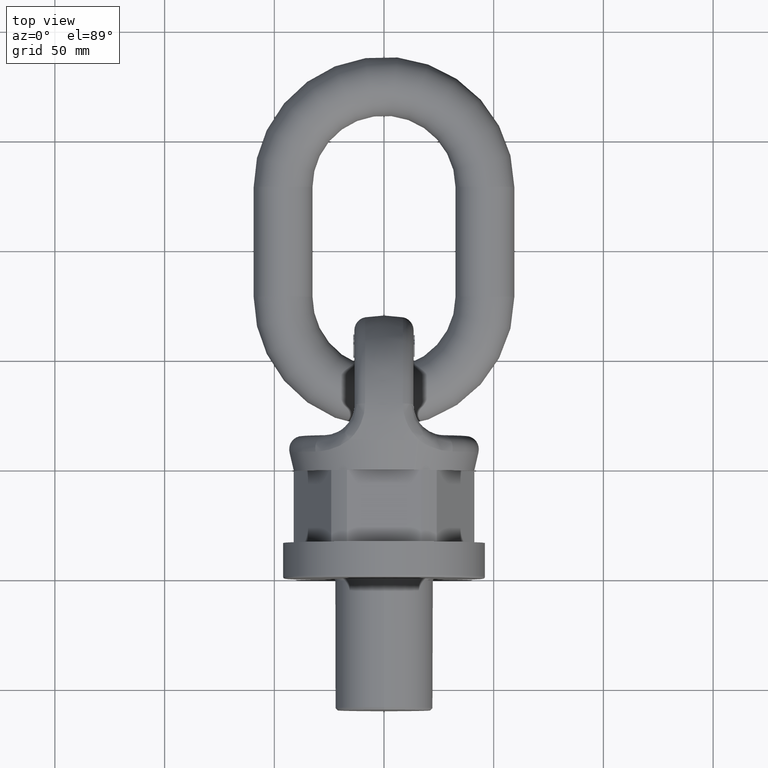
[diagram: clean part render]
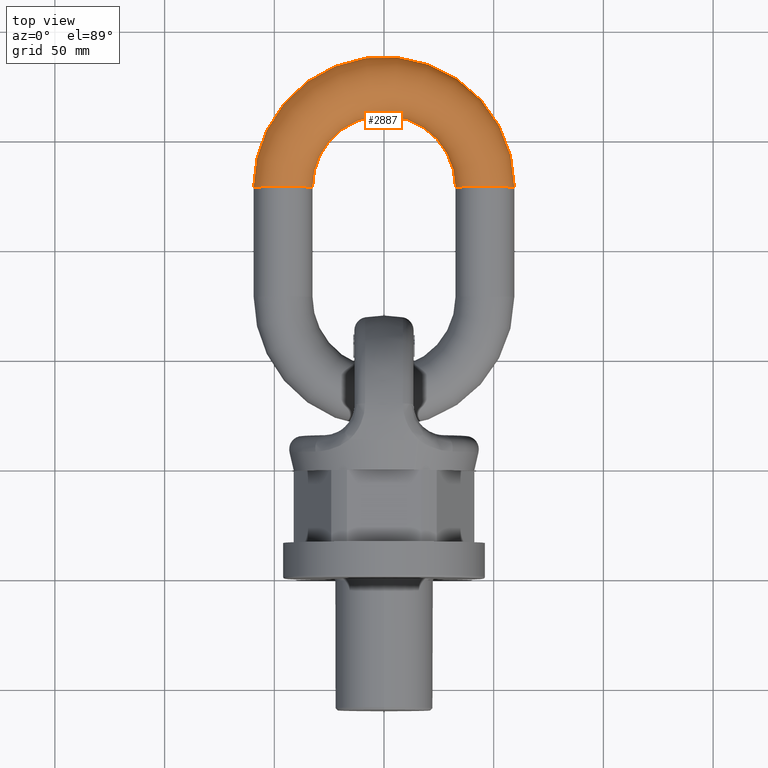
[diagram: same view with one face highlighted and labeled with its STEP entity id]
A machine part, top view. The second image highlights one B-rep face of the part: STEP entity #2887.
In plain terms, the highlighted toroidal blend (fillet) surface has major radius 46 mm and minor (blend) radius 13.5 mm.
Its self-contained STEP definition (entity closure, byte-faithful):
#1805=TOROIDAL_SURFACE('',#5808,46.,13.5);
#2887=ADVANCED_FACE('',(#3063,#3064),#1805,.T.);
#3063=FACE_BOUND('',#3349,.T.);
#3064=FACE_BOUND('',#3350,.T.);
#3349=EDGE_LOOP('',(#4541));
#3350=EDGE_LOOP('',(#4542));
#4541=ORIENTED_EDGE('',*,*,#5536,.F.);
#4542=ORIENTED_EDGE('',*,*,#5534,.T.);
#4938=VERTEX_POINT('',#9752);
#4940=VERTEX_POINT('',#9758);
#5534=EDGE_CURVE('',#4938,#4938,#5600,.T.);
#5536=EDGE_CURVE('',#4940,#4940,#5602,.T.);
#5600=CIRCLE('',#5802,13.5);
#5602=CIRCLE('',#5806,13.5);
#5802=AXIS2_PLACEMENT_3D('',#9751,#6555,#6556);
#5806=AXIS2_PLACEMENT_3D('',#9757,#6563,#6564);
#5808=AXIS2_PLACEMENT_3D('',#9760,#6567,#6568);
#6555=DIRECTION('',(-1.01064309961486E-15,1.,0.));
#6556=DIRECTION('',(0.,0.,-1.));
#6563=DIRECTION('',(0.,-1.,0.));
#6564=DIRECTION('',(0.,0.,-1.));
#6567=DIRECTION('',(0.,0.,1.));
#6568=DIRECTION('',(1.,0.,0.));
#9751=CARTESIAN_POINT('',(-46.,178.5,0.));
#9752=CARTESIAN_POINT('',(-46.,178.5,-13.5));
#9757=CARTESIAN_POINT('',(46.,178.5,0.));
#9758=CARTESIAN_POINT('',(46.,178.5,-13.5));
#9760=CARTESIAN_POINT('',(2.08166817117217E-14,178.5,0.));